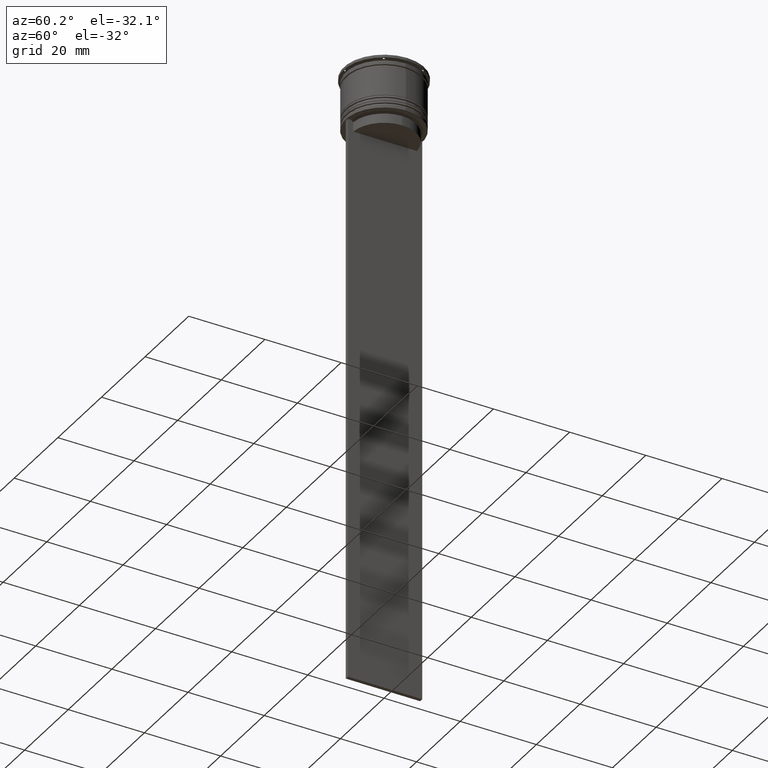
[diagram: clean part render]
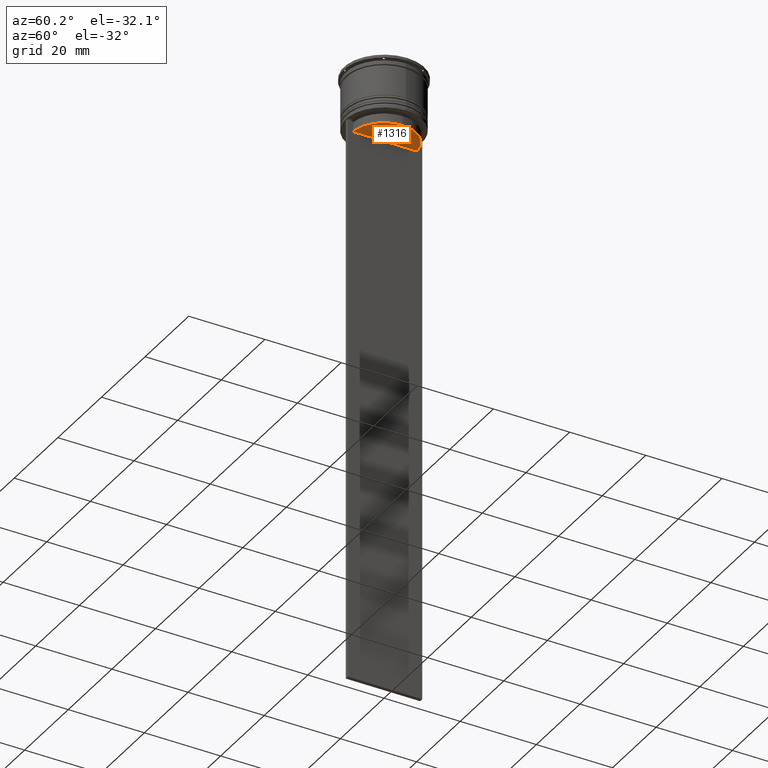
[diagram: same view with one face highlighted and labeled with its STEP entity id]
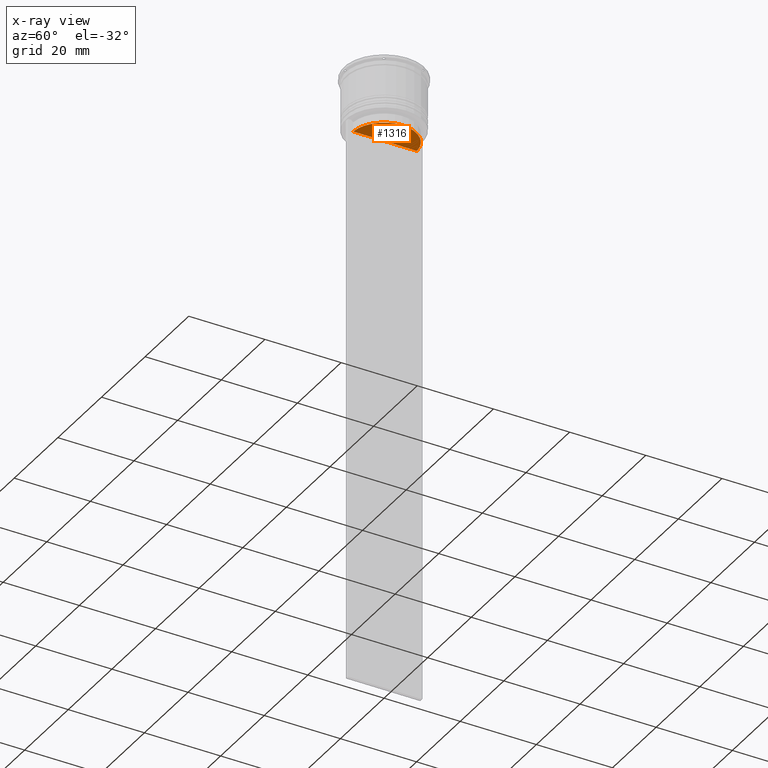
[diagram: x-ray of the same camera — body ghosted, the highlighted face saturated]
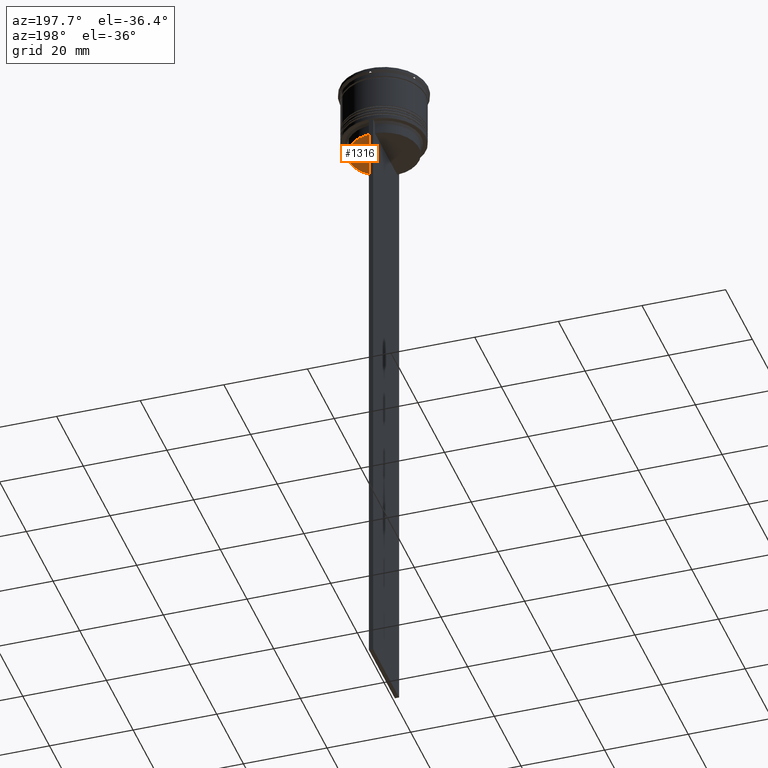
[diagram: same view with one face highlighted and labeled with its STEP entity id]
A machine part, auxiliary view. The second image highlights one B-rep face of the part: STEP entity #1316.
The next image is the same camera in x-ray: the body ghosted, the highlighted face saturated — about 0% of this face is hidden behind the body in this view.
A second angle (auxiliary view) of the same face is appended — the face is thin or edge-on in the first view.
In plain terms, the highlighted planar face has unit normal (0, -0, 1).
Its self-contained STEP definition (entity closure, byte-faithful):
#141 = DIRECTION ( 'NONE',  ( 1.000000000000000000, 0.000000000000000000, 0.000000000000000000 ) ) ;
#187 = VERTEX_POINT ( 'NONE', #410 ) ;
#410 = CARTESIAN_POINT ( 'NONE',  ( 8.400000000000003908, 0.000000000000000000, -17.00000000000000000 ) ) ;
#619 = CIRCLE ( 'NONE', #1700, 8.400000000000003908 ) ;
#726 = EDGE_CURVE ( 'NONE', #187, #2316, #619, .T. ) ;
#820 = LINE ( 'NONE', #1431, #1995 ) ;
#825 = EDGE_LOOP ( 'NONE', ( #1292, #1822, #2016 ) ) ;
#826 = CARTESIAN_POINT ( 'NONE',  ( 0.000000000000000000, 0.000000000000000000, -17.00000000000000000 ) ) ;
#848 = CARTESIAN_POINT ( 'NONE',  ( 0.000000000000000000, 0.000000000000000000, -17.00000000000000000 ) ) ;
#1014 = CARTESIAN_POINT ( 'NONE',  ( 0.4999999999999998890, -8.385105843100616241, -17.00000000000000000 ) ) ;
#1018 = DIRECTION ( 'NONE',  ( -0.000000000000000000, -0.000000000000000000, 1.000000000000000000 ) ) ;
#1113 = DIRECTION ( 'NONE',  ( 0.000000000000000000, -0.000000000000000000, 1.000000000000000000 ) ) ;
#1292 = ORIENTED_EDGE ( 'NONE', *, *, #2379, .F. ) ;
#1316 = ADVANCED_FACE ( 'NONE', ( #1487 ), #1718, .F. ) ;
#1356 = CARTESIAN_POINT ( 'NONE',  ( 0.4999999999999998890, 8.385105843100616241, -17.00000000000000000 ) ) ;
#1408 = AXIS2_PLACEMENT_3D ( 'NONE', #2472, #1113, #141 ) ;
#1431 = CARTESIAN_POINT ( 'NONE',  ( 0.4999999999999998890, 8.400000000000003908, -17.00000000000000000 ) ) ;
#1487 = FACE_OUTER_BOUND ( 'NONE', #825, .T. ) ;
#1543 = VERTEX_POINT ( 'NONE', #1014 ) ;
#1700 = AXIS2_PLACEMENT_3D ( 'NONE', #848, #2390, #1841 ) ;
#1718 = PLANE ( 'NONE',  #1408 ) ;
#1781 = AXIS2_PLACEMENT_3D ( 'NONE', #826, #1018, #1805 ) ;
#1805 = DIRECTION ( 'NONE',  ( 1.000000000000000000, 0.000000000000000000, 0.000000000000000000 ) ) ;
#1822 = ORIENTED_EDGE ( 'NONE', *, *, #726, .F. ) ;
#1841 = DIRECTION ( 'NONE',  ( 1.000000000000000000, 0.000000000000000000, 0.000000000000000000 ) ) ;
#1842 = DIRECTION ( 'NONE',  ( 0.000000000000000000, -1.000000000000000000, 0.000000000000000000 ) ) ;
#1995 = VECTOR ( 'NONE', #1842, 1000.000000000000000 ) ;
#2016 = ORIENTED_EDGE ( 'NONE', *, *, #2184, .F. ) ;
#2184 = EDGE_CURVE ( 'NONE', #1543, #187, #2580, .T. ) ;
#2316 = VERTEX_POINT ( 'NONE', #1356 ) ;
#2379 = EDGE_CURVE ( 'NONE', #2316, #1543, #820, .T. ) ;
#2390 = DIRECTION ( 'NONE',  ( -0.000000000000000000, -0.000000000000000000, 1.000000000000000000 ) ) ;
#2472 = CARTESIAN_POINT ( 'NONE',  ( 0.000000000000000000, 8.400000000000003908, -17.00000000000000000 ) ) ;
#2580 = CIRCLE ( 'NONE', #1781, 8.400000000000003908 ) ;